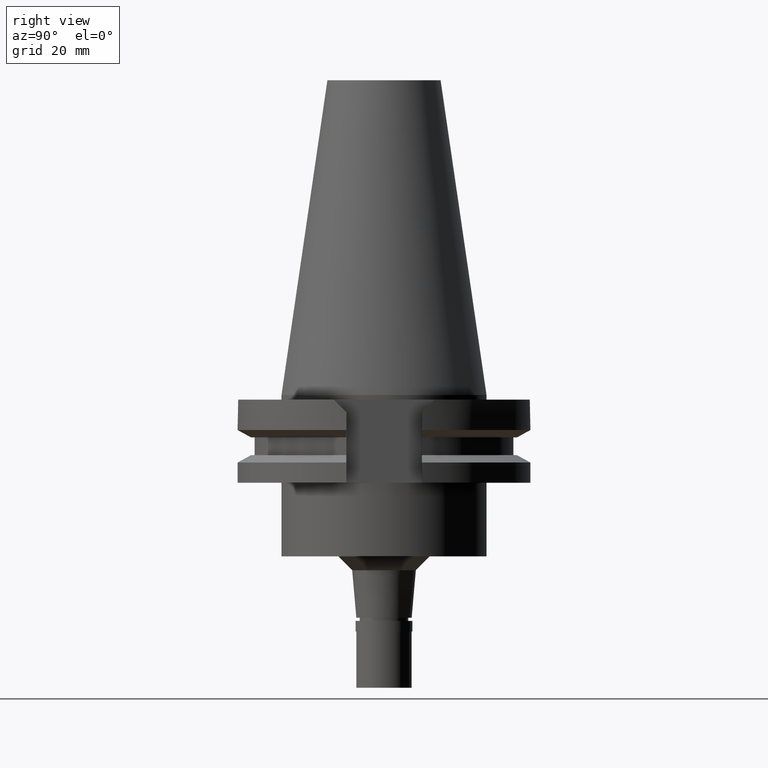
[diagram: clean part render]
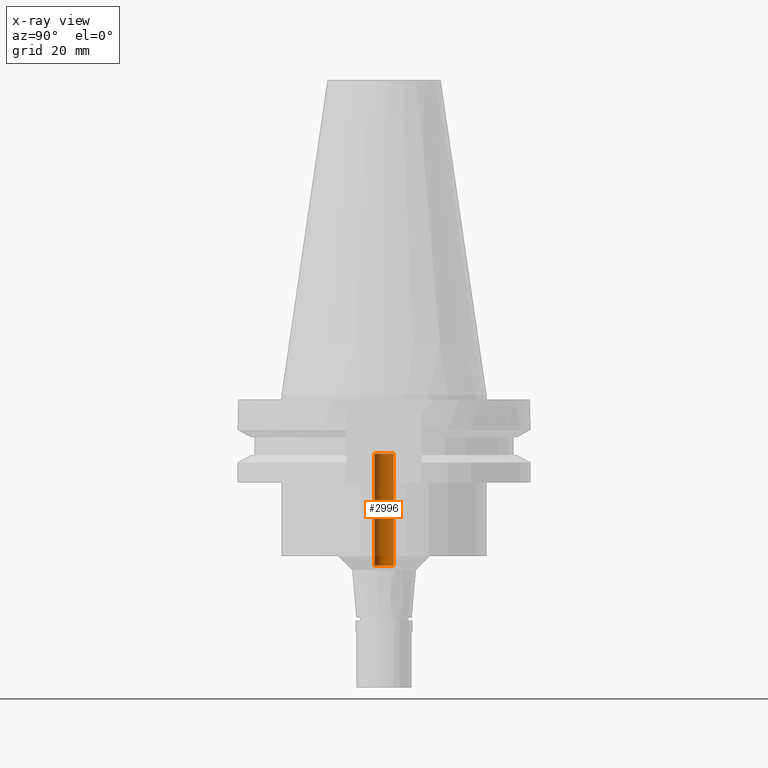
[diagram: x-ray — body ghosted, one internal face saturated and labeled with its STEP entity id]
A machine part, right view, then the same camera in x-ray: the body is ghosted and one INTERNAL B-rep face — a face not visible from any outside direction — is saturated and labeled: STEP entity #2996.
In plain terms, the highlighted cylindrical surface (edge-blend (fillet) strip) has radius 2.1 mm, axis along (0, 0, -1).
Its self-contained STEP definition (entity closure, byte-faithful):
#28 = LINE ( 'NONE', #1024, #2445 ) ;
#33 = FACE_OUTER_BOUND ( 'NONE', #2009, .T. ) ;
#107 = CARTESIAN_POINT ( 'NONE',  ( 0.0000000000000000000, 2.100000000000000089, -12.75000000000000000 ) ) ;
#142 = ORIENTED_EDGE ( 'NONE', *, *, #1303, .T. ) ;
#227 = ORIENTED_EDGE ( 'NONE', *, *, #2966, .F. ) ;
#275 = CARTESIAN_POINT ( 'NONE',  ( 0.0000000000000000000, -2.100000000000000089, -37.00000000000000000 ) ) ;
#304 = DIRECTION ( 'NONE',  ( 0.0000000000000000000, 0.0000000000000000000, -1.000000000000000000 ) ) ;
#377 = DIRECTION ( 'NONE',  ( 0.0000000000000000000, 0.0000000000000000000, -1.000000000000000000 ) ) ;
#400 = ORIENTED_EDGE ( 'NONE', *, *, #985, .T. ) ;
#513 = VERTEX_POINT ( 'NONE', #107 ) ;
#533 = CARTESIAN_POINT ( 'NONE',  ( 0.0000000000000000000, 2.138692553861000088E-14, -12.75000000000000000 ) ) ;
#564 = LINE ( 'NONE', #1283, #2127 ) ;
#634 = ORIENTED_EDGE ( 'NONE', *, *, #1161, .T. ) ;
#757 = CARTESIAN_POINT ( 'NONE',  ( 0.0000000000000000000, 2.138692553861000088E-14, 74.63749999999998863 ) ) ;
#985 = EDGE_CURVE ( 'NONE', #3155, #513, #28, .T. ) ;
#1024 = CARTESIAN_POINT ( 'NONE',  ( 0.0000000000000000000, 2.100000000000000089, -37.00000000000000000 ) ) ;
#1040 = DIRECTION ( 'NONE',  ( 0.0000000000000000000, -1.000000000000000000, 0.0000000000000000000 ) ) ;
#1161 = EDGE_CURVE ( 'NONE', #513, #2555, #3202, .T. ) ;
#1283 = CARTESIAN_POINT ( 'NONE',  ( 0.0000000000000000000, -2.100000000000000089, -37.00000000000000000 ) ) ;
#1303 = EDGE_CURVE ( 'NONE', #3034, #3155, #2187, .T. ) ;
#1342 = CYLINDRICAL_SURFACE ( 'NONE', #3005, 2.100000000000000089 ) ;
#1516 = DIRECTION ( 'NONE',  ( 0.0000000000000000000, 0.0000000000000000000, 1.000000000000000000 ) ) ;
#1532 = DIRECTION ( 'NONE',  ( 0.0000000000000000000, 0.0000000000000000000, 1.000000000000000000 ) ) ;
#1564 = AXIS2_PLACEMENT_3D ( 'NONE', #2085, #304, #2023 ) ;
#1851 = CARTESIAN_POINT ( 'NONE',  ( 0.0000000000000000000, 2.100000000000000089, -37.00000000000000000 ) ) ;
#2007 = DIRECTION ( 'NONE',  ( 0.0000000000000000000, 1.000000000000000000, 0.0000000000000000000 ) ) ;
#2009 = EDGE_LOOP ( 'NONE', ( #634, #227, #142, #400 ) ) ;
#2023 = DIRECTION ( 'NONE',  ( 0.0000000000000000000, -1.000000000000000000, 0.0000000000000000000 ) ) ;
#2085 = CARTESIAN_POINT ( 'NONE',  ( 0.0000000000000000000, 2.138692553861000088E-14, -37.00000000000000000 ) ) ;
#2127 = VECTOR ( 'NONE', #2275, 1000.000000000000000 ) ;
#2187 = CIRCLE ( 'NONE', #1564, 2.100000000000000089 ) ;
#2236 = AXIS2_PLACEMENT_3D ( 'NONE', #533, #1516, #2007 ) ;
#2275 = DIRECTION ( 'NONE',  ( 0.0000000000000000000, 0.0000000000000000000, 1.000000000000000000 ) ) ;
#2362 = CARTESIAN_POINT ( 'NONE',  ( 0.0000000000000000000, -2.100000000000000089, -12.75000000000000000 ) ) ;
#2445 = VECTOR ( 'NONE', #1532, 1000.000000000000000 ) ;
#2555 = VERTEX_POINT ( 'NONE', #2362 ) ;
#2966 = EDGE_CURVE ( 'NONE', #3034, #2555, #564, .T. ) ;
#2996 = ADVANCED_FACE ( 'NONE', ( #33 ), #1342, .F. ) ;
#3005 = AXIS2_PLACEMENT_3D ( 'NONE', #757, #377, #1040 ) ;
#3034 = VERTEX_POINT ( 'NONE', #275 ) ;
#3155 = VERTEX_POINT ( 'NONE', #1851 ) ;
#3202 = CIRCLE ( 'NONE', #2236, 2.100000000000000089 ) ;